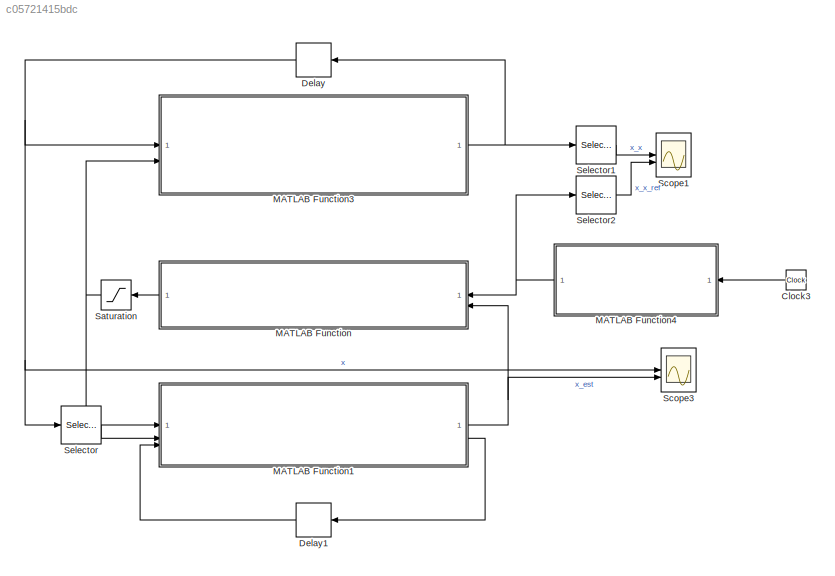
MODEL slx_c05721415bdc
KIND model
CONFIG AbsTol = auto
CONFIG EnableMultiTasking = off
CONFIG FixedStep = 0.001
CONFIG MaxStep = auto
CONFIG MinStep = auto
CONFIG RelTol = 1e-3
CONFIG SampleTimeConstraint = Unconstrained
CONFIG SolverName = ode4
CONFIG StartTime = 0.0
CONFIG StopTime = 10.0
BLOCK [Clock] Clock3
  NameLocation = top
BLOCK [Delay] Delay
  DelayLength = 1
  InitialCondition = par.ex5_4_x0
  InputPortMap = u0
BLOCK [Delay] Delay1
  DelayLength = 1
  InitialCondition = par.ex5_4_x0_hat
  InputPortMap = u0
  UseCircularBuffer = on
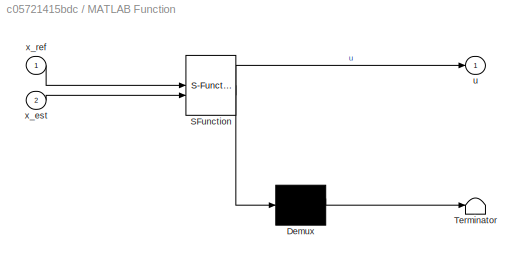
BLOCK [SubSystem] MATLAB Function
  ErrorFcn = Stateflow.Translate.translate
  LibrarySourceBlock = simulink/User-Defined\nFunctions/MATLAB Function
  PermitHierarchicalResolution = ExplicitOnly
  SFBlockType = MATLAB Function
  TreatAsAtomicUnit = on
BLOCK [Demux] MATLAB Function/ Demux 
  Outputs = 1
BLOCK [S-Function] MATLAB Function/ SFunction 
  EnableBusSupport = on
  FunctionName = sf_sfun
  Parameters = par
  PortCounts = [2 2]
  SFcnIsStateOwnerBlock = off
  SFunctionDeploymentMode = off
  Tag = Stateflow S-Function 1
BLOCK [Terminator] MATLAB Function/ Terminator 
BLOCK [Outport] MATLAB Function/u
BLOCK [Inport] MATLAB Function/x_est
  Port = 2
BLOCK [Inport] MATLAB Function/x_ref
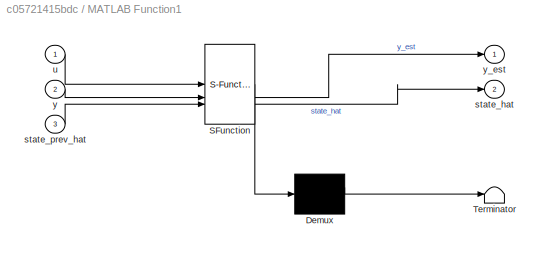
BLOCK [SubSystem] MATLAB Function1
  ErrorFcn = Stateflow.Translate.translate
  PermitHierarchicalResolution = ExplicitOnly
  SFBlockType = MATLAB Function
  TreatAsAtomicUnit = on
BLOCK [Demux] MATLAB Function1/ Demux 
  Outputs = 1
BLOCK [S-Function] MATLAB Function1/ SFunction 
  EnableBusSupport = on
  FunctionName = sf_sfun
  Parameters = par
  PortCounts = [3 3]
  SFcnIsStateOwnerBlock = off
  SFunctionDeploymentMode = off
  Tag = Stateflow S-Function 3
BLOCK [Terminator] MATLAB Function1/ Terminator 
BLOCK [Outport] MATLAB Function1/state_hat
  Port = 2
BLOCK [Inport] MATLAB Function1/state_prev_hat
  Port = 3
BLOCK [Inport] MATLAB Function1/u
BLOCK [Inport] MATLAB Function1/y
  Port = 2
BLOCK [Outport] MATLAB Function1/y_est
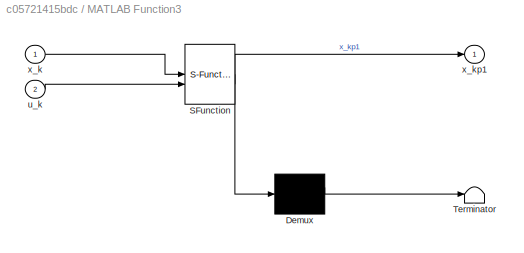
BLOCK [SubSystem] MATLAB Function3
  ErrorFcn = Stateflow.Translate.translate
  PermitHierarchicalResolution = ExplicitOnly
  SFBlockType = MATLAB Function
  TreatAsAtomicUnit = on
BLOCK [Demux] MATLAB Function3/ Demux 
  Outputs = 1
BLOCK [S-Function] MATLAB Function3/ SFunction 
  EnableBusSupport = on
  FunctionName = sf_sfun
  Parameters = par
  PortCounts = [2 2]
  SFcnIsStateOwnerBlock = off
  SFunctionDeploymentMode = off
  Tag = Stateflow S-Function 4
BLOCK [Terminator] MATLAB Function3/ Terminator 
BLOCK [Inport] MATLAB Function3/u_k
  Port = 2
BLOCK [Inport] MATLAB Function3/x_k
BLOCK [Outport] MATLAB Function3/x_kp1
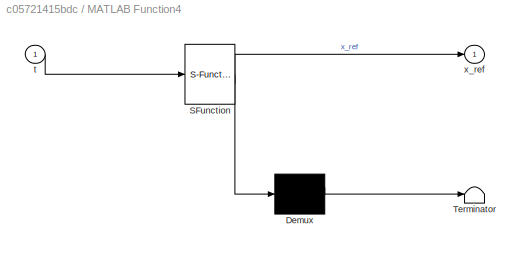
BLOCK [SubSystem] MATLAB Function4
  ErrorFcn = Stateflow.Translate.translate
  NameLocation = top
  PermitHierarchicalResolution = ExplicitOnly
  SFBlockType = MATLAB Function
  TreatAsAtomicUnit = on
BLOCK [Demux] MATLAB Function4/ Demux 
  Outputs = 1
BLOCK [S-Function] MATLAB Function4/ SFunction 
  EnableBusSupport = on
  FunctionName = sf_sfun
  PortCounts = [1 2]
  SFcnIsStateOwnerBlock = off
  SFunctionDeploymentMode = off
  Tag = Stateflow S-Function 2
BLOCK [Terminator] MATLAB Function4/ Terminator 
BLOCK [Inport] MATLAB Function4/t
BLOCK [Outport] MATLAB Function4/x_ref
BLOCK [Saturate] Saturation
  LowerLimit = -10
  UpperLimit = 10
BLOCK [Scope] Scope1
  Floating = off
  NumInputPorts = 2
  ScopeSpecificationString = Simulink.scopes.TimeScopeBlockCfg('CurrentConfiguration', extmgr.ConfigurationSet(extmgr.Configuration('Core','General UI',true),extmgr.Configuration('Core','Source UI',true),extmgr.Configuration('Sources','WiredSimulink',true,'DataLoggingVariableName','ScopeData1'),extmgr.Configuration('Visuals','Time Domain',true,'SerializedDisplays',{struct('MinYLimReal','-0.05774','MaxYLimReal','0.0509','YLabe...<+1530ch>
BLOCK [Scope] Scope3
  Floating = off
  NumInputPorts = 2
  ScopeSpecificationString = Simulink.scopes.TimeScopeBlockCfg('CurrentConfiguration', extmgr.ConfigurationSet(extmgr.Configuration('Core','General UI',true),extmgr.Configuration('Core','Source UI',true),extmgr.Configuration('Sources','WiredSimulink',true,'DataLoggingVariableName','ScopeData3'),extmgr.Configuration('Visuals','Time Domain',true,'SerializedDisplays',{struct('MinYLimReal','-0.09684','MaxYLimReal','0.24244','YLab...<+1548ch>
BLOCK [Selector] Selector
  IndexOptions = Index vector (dialog)
  Indices = [1]
  InputPortWidth = 2
  OutputSizes = 1
BLOCK [Selector] Selector1
  IndexOptions = Index vector (dialog)
  Indices = [1]
  InputPortWidth = 2
  OutputSizes = 1
BLOCK [Selector] Selector2
  IndexOptions = Index vector (dialog)
  Indices = [1]
  InputPortWidth = 3
  OutputSizes = 1
LINE Clock3:1 -> MATLAB Function4:1
LINE Delay1:1 -> MATLAB Function1:3
NET Delay:1 -> MATLAB Function3:1, Scope3:1, Selector:1
NET MATLAB Function1:1 -> MATLAB Function:2, Scope3:2
LINE MATLAB Function1:2 -> Delay1:1
NET MATLAB Function3:1 -> Delay:1, Selector1:1
NET MATLAB Function4:1 -> MATLAB Function:1, Selector2:1
LINE MATLAB Function:1 -> Saturation:1
NET Saturation:1 -> MATLAB Function1:1, MATLAB Function3:2
LINE Selector1:1 -> Scope1:1
LINE Selector2:1 -> Scope1:2
LINE Selector:1 -> MATLAB Function1:2
note: NET lines group one-source signal fan-out (src -> all destinations, sorted); 1:1 wires keep LINE
CHART MATLAB Function states=1 transitions=1
  STATE_LABEL 'eML_blk_kernel()'
  STATE_LABEL 'SCRIPT:\nfunction u = Flatness_based_controller(x_ref, x_est, par)\ng = par.g;\np1 = par.p1;\np0 = par.p0;\n\nv = x_ref(3) - p1*(x_est(2) - x_ref(2)) - p0*(x_est(1) - x_ref(1));\nu = -asin((7*v)/(5*g));\nend\n'
CHART MATLAB Function4 states=1 transitions=1
  STATE_LABEL 'eML_blk_kernel()'
  STATE_LABEL 'SCRIPT:\nfunction x_ref = Trajectory_Generator(t)\n\n    % Preallocate the reference trajectory and derivatives vector\n    x_ref = zeros(3,1);\n\n    % Symbolic expressions as calculated in remark 5.1\n    x_ref(1) =  cos((pi*t)/2)/25;\n    x_ref(2) = -(pi*sin((pi*t)/2))/50;\n    x_ref(3) = -(pi^2*cos((pi*t)/2))/100;\n\n\n\n\n\n\n'
CHART MATLAB Function1 states=1 transitions=1
  STATE_LABEL 'eML_blk_kernel()'
  STATE_LABEL 'SCRIPT:\nfunction [y_est, state_hat] = extKalF(u, y, state_prev_hat, par )\n    \n    R = par.R;          % Measurement covariance matrix\n    Q = par.Q;          % Process covariance matrix\n\n    ts = par.timeStep;  % discretization timestep for the explicit euler\n\n    h = @(x) [x(1)];    % As we only measure the first state\n    \n    H = [1 0];          % Measurement Jacobian        \n    dF = [ 0 1; 0...<+810ch>'
CHART MATLAB Function3 states=1 transitions=1
  STATE_LABEL 'eML_blk_kernel()'
  STATE_LABEL 'SCRIPT:\nfunction x_kp1 = ball_and_beam_reduced_discrete(x_k, u_k, par)\n%#codegen\nx_kp1 = ball_and_beam_reduced_discrete(x_k, u_k, par);\n'
CHART  states=0 transitions=0
CHART  states=0 transitions=0
CHART  states=0 transitions=0
CHART  states=0 transitions=0
